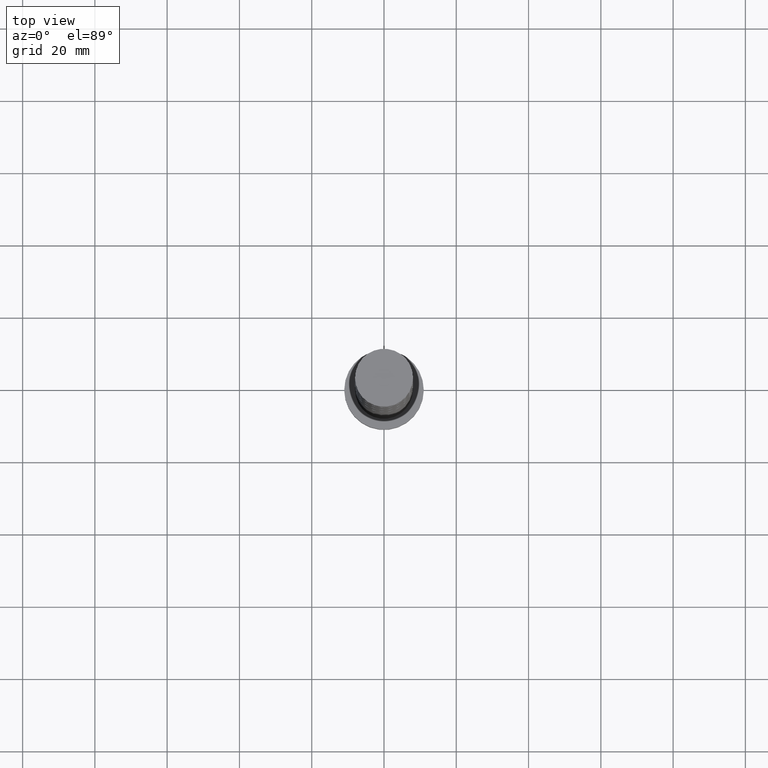
[diagram: clean part render]
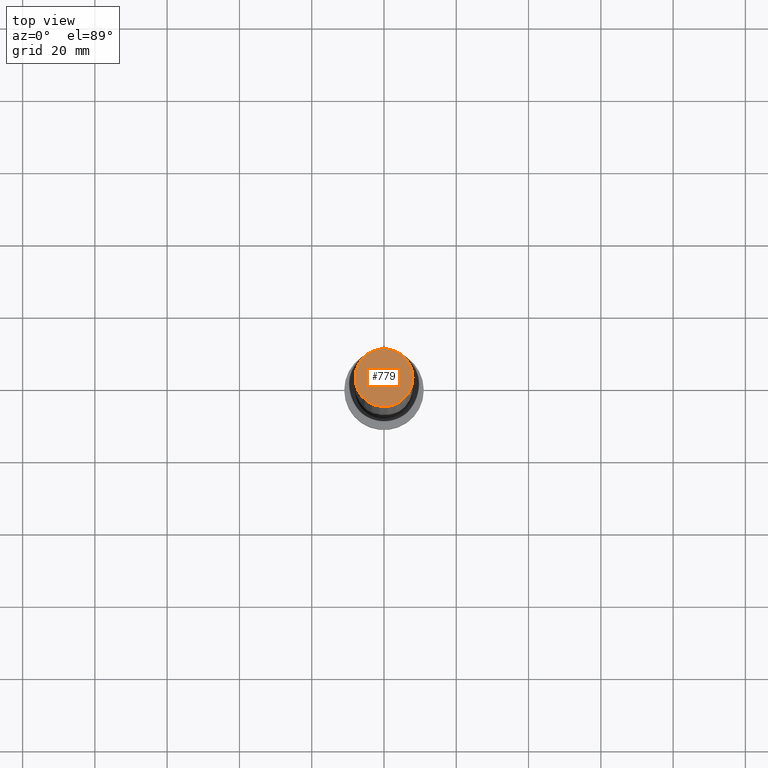
[diagram: same view with one face highlighted and labeled with its STEP entity id]
A machine part, top view. The second image highlights one B-rep face of the part: STEP entity #779.
In plain terms, the highlighted planar face has unit normal (0, 0, 1).
Its self-contained STEP definition (entity closure, byte-faithful):
#69 = AXIS2_PLACEMENT_3D ( 'NONE', #1092, #1630, #1507 ) ;
#102 = EDGE_CURVE ( 'NONE', #632, #984, #810, .T. ) ;
#275 = CARTESIAN_POINT ( 'NONE',  ( 8.000000000000000000, 9.797174393178825657E-16, 200.0000000000000000 ) ) ;
#284 = ORIENTED_EDGE ( 'NONE', *, *, #1148, .T. ) ;
#536 = DIRECTION ( 'NONE',  ( 1.000000000000000000, 0.000000000000000000, 0.000000000000000000 ) ) ;
#552 = PLANE ( 'NONE',  #69 ) ;
#632 = VERTEX_POINT ( 'NONE', #275 ) ;
#640 = CARTESIAN_POINT ( 'NONE',  ( -8.000000000000000000, 0.000000000000000000, 200.0000000000000000 ) ) ;
#779 = ADVANCED_FACE ( 'NONE', ( #1257 ), #552, .T. ) ;
#783 = CIRCLE ( 'NONE', #812, 8.000000000000000000 ) ;
#799 = DIRECTION ( 'NONE',  ( 0.000000000000000000, 0.000000000000000000, 1.000000000000000000 ) ) ;
#810 = CIRCLE ( 'NONE', #1239, 8.000000000000000000 ) ;
#812 = AXIS2_PLACEMENT_3D ( 'NONE', #1169, #799, #1335 ) ;
#984 = VERTEX_POINT ( 'NONE', #640 ) ;
#1092 = CARTESIAN_POINT ( 'NONE',  ( 0.000000000000000000, 0.000000000000000000, 200.0000000000000000 ) ) ;
#1148 = EDGE_CURVE ( 'NONE', #984, #632, #783, .T. ) ;
#1169 = CARTESIAN_POINT ( 'NONE',  ( 0.000000000000000000, 0.000000000000000000, 200.0000000000000000 ) ) ;
#1239 = AXIS2_PLACEMENT_3D ( 'NONE', #1606, #1518, #536 ) ;
#1257 = FACE_OUTER_BOUND ( 'NONE', #1496, .T. ) ;
#1335 = DIRECTION ( 'NONE',  ( 1.000000000000000000, 0.000000000000000000, 0.000000000000000000 ) ) ;
#1496 = EDGE_LOOP ( 'NONE', ( #284, #1502 ) ) ;
#1502 = ORIENTED_EDGE ( 'NONE', *, *, #102, .T. ) ;
#1507 = DIRECTION ( 'NONE',  ( 1.000000000000000000, 0.000000000000000000, -0.000000000000000000 ) ) ;
#1518 = DIRECTION ( 'NONE',  ( 0.000000000000000000, 0.000000000000000000, 1.000000000000000000 ) ) ;
#1606 = CARTESIAN_POINT ( 'NONE',  ( 0.000000000000000000, 0.000000000000000000, 200.0000000000000000 ) ) ;
#1630 = DIRECTION ( 'NONE',  ( 0.000000000000000000, 0.000000000000000000, 1.000000000000000000 ) ) ;